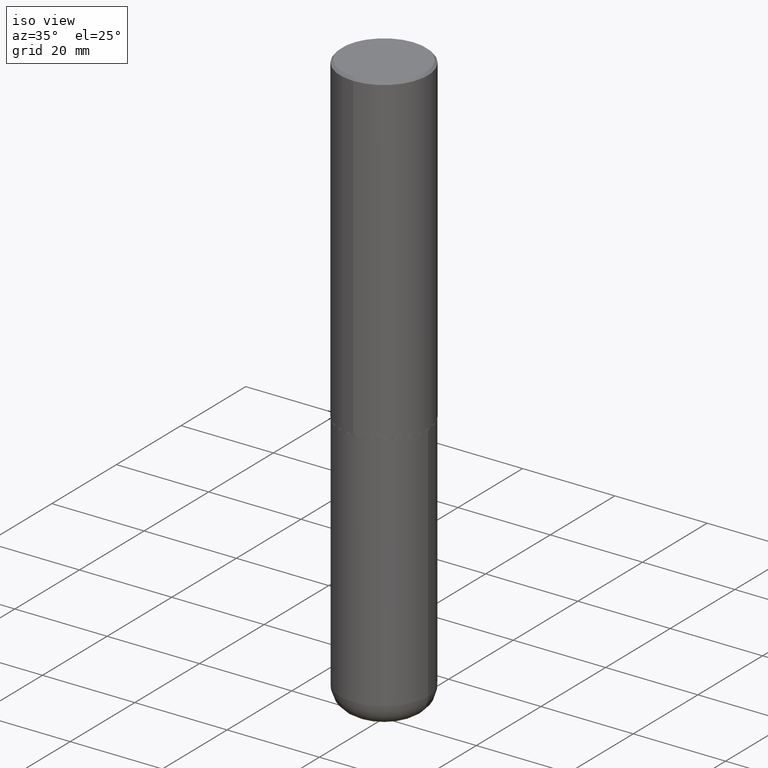
[diagram: clean part render]
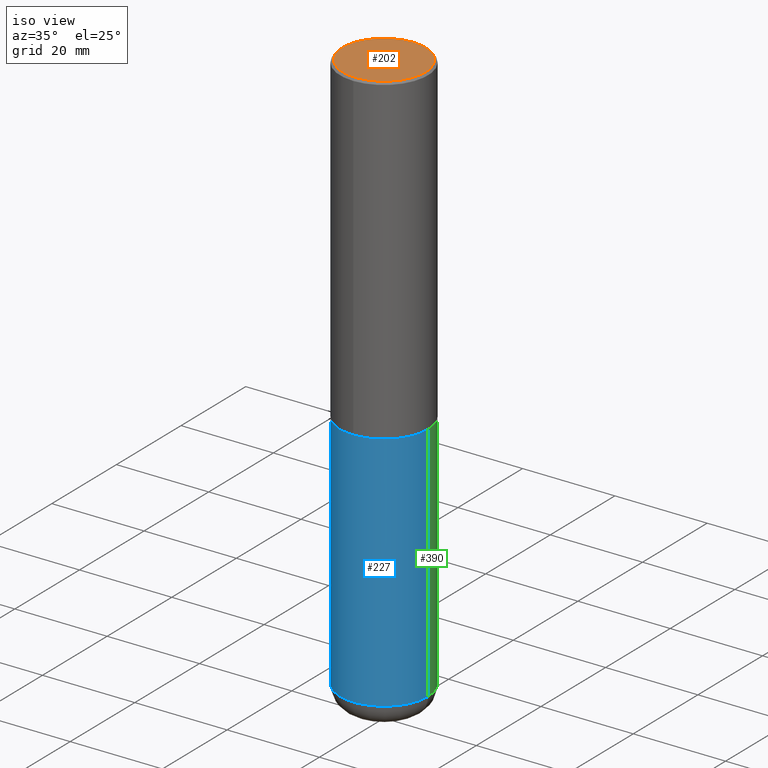
[diagram: same view with three faces highlighted in distinct colors, each labeled with its STEP entity id]
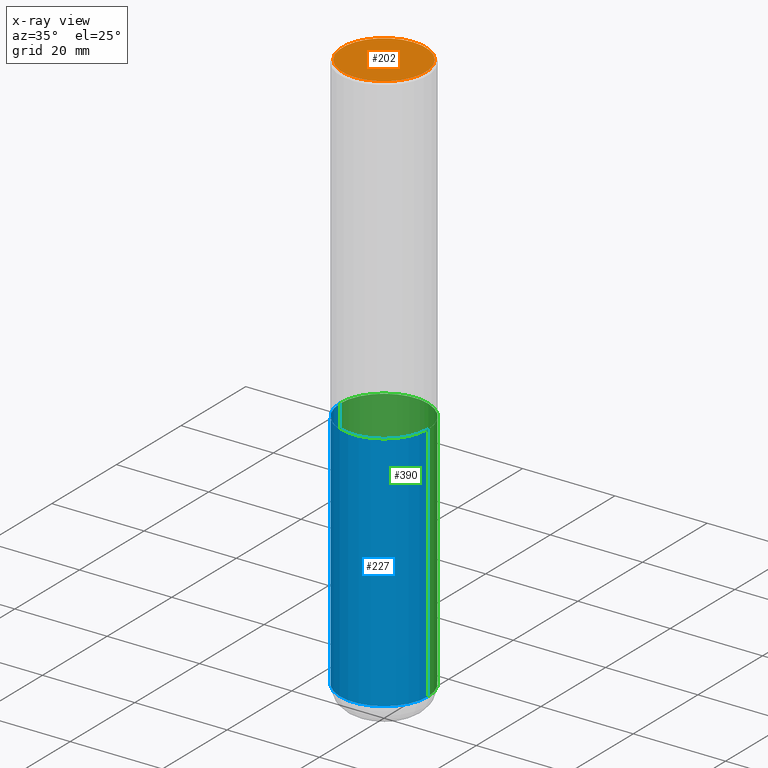
[diagram: x-ray of the same camera — body ghosted, the three highlighted faces saturated]
A machine part, iso view with three faces highlighted in distinct colors.
The next image is the same camera in x-ray (body ghosted, the three faces saturated) — at least one of them is partly hidden behind the body in this view.
Their STEP definitions:

[orange] entity #202 — the highlighted planar face has unit normal (0, -0, -1).
#7 = AXIS2_PLACEMENT_3D ( 'NONE', #410, #127, #166 ) ;
#10 = CARTESIAN_POINT ( 'NONE',  ( -2.504081769186608216E-15, -0.3549999999999999822, 1.285848347115290366E-15 ) ) ;
#50 = DIRECTION ( 'NONE',  ( -6.982962677686265922E-15, -1.000000000000000000, 3.490662795793665557E-15 ) ) ;
#67 = EDGE_CURVE ( 'NONE', #359, #71, #88, .T. ) ;
#71 = VERTEX_POINT ( 'NONE', #90 ) ;
#79 = DIRECTION ( 'NONE',  ( 6.982962677686265922E-15, 1.000000000000000000, -3.490662795793665557E-15 ) ) ;
#88 = CIRCLE ( 'NONE', #7, 0.3549999999999999822 ) ;
#90 = CARTESIAN_POINT ( 'NONE',  ( 2.548781377355487113E-15, 0.3549999999999999822, -1.192522237898212341E-15 ) ) ;
#103 = DIRECTION ( 'NONE',  ( 2.446040391741596045E-29, -3.490662795793665557E-15, -1.000000000000000000 ) ) ;
#127 = DIRECTION ( 'NONE',  ( -2.446040391741596606E-29, 3.490662795793665557E-15, 1.000000000000000000 ) ) ;
#138 = PLANE ( 'NONE',  #221 ) ;
#166 = DIRECTION ( 'NONE',  ( -6.982962677686265922E-15, -1.000000000000000000, 3.490662795793665557E-15 ) ) ;
#202 = ADVANCED_FACE ( 'NONE', ( #355 ), #138, .F. ) ;
#206 = AXIS2_PLACEMENT_3D ( 'NONE', #364, #332, #50 ) ;
#221 = AXIS2_PLACEMENT_3D ( 'NONE', #393, #103, #79 ) ;
#239 = EDGE_CURVE ( 'NONE', #71, #359, #329, .T. ) ;
#305 = EDGE_LOOP ( 'NONE', ( #360, #392 ) ) ;
#329 = CIRCLE ( 'NONE', #206, 0.3549999999999999822 ) ;
#332 = DIRECTION ( 'NONE',  ( -2.446040391741596606E-29, 3.490662795793665557E-15, 1.000000000000000000 ) ) ;
#355 = FACE_OUTER_BOUND ( 'NONE', #305, .T. ) ;
#359 = VERTEX_POINT ( 'NONE', #10 ) ;
#360 = ORIENTED_EDGE ( 'NONE', *, *, #239, .T. ) ;
#364 = CARTESIAN_POINT ( 'NONE',  ( -1.141397163745304909E-45, 1.628849886601155835E-31, 4.666305460853910467E-17 ) ) ;
#392 = ORIENTED_EDGE ( 'NONE', *, *, #67, .T. ) ;
#393 = CARTESIAN_POINT ( 'NONE',  ( 2.478951750578624209E-15, 0.3549999999999999822, -1.215853765202481601E-15 ) ) ;
#410 = CARTESIAN_POINT ( 'NONE',  ( -1.141397163745304909E-45, 1.628849886601155835E-31, 4.666305460853910467E-17 ) ) ;

[blue] entity #227 — the highlighted cylindrical surface (partial cylindrical patch) has radius 9.525 mm, axis along (-0, 0, 1).
#4 = DIRECTION ( 'NONE',  ( -2.445468806185136597E-29, 3.491481338843145583E-15, 1.000000000000000000 ) ) ;
#20 = DIRECTION ( 'NONE',  ( 1.000000000000000000, -6.982962677686265922E-15, 0.000000000000000000 ) ) ;
#27 = EDGE_CURVE ( 'NONE', #181, #38, #215, .T. ) ;
#38 = VERTEX_POINT ( 'NONE', #51 ) ;
#44 = CARTESIAN_POINT ( 'NONE',  ( 6.725039217009124520E-29, -9.601573681818649859E-15, -2.750000000000000000 ) ) ;
#51 = CARTESIAN_POINT ( 'NONE',  ( 0.3750000000000000555, -1.222018468595100145E-14, -2.750000000000000000 ) ) ;
#53 = CARTESIAN_POINT ( 'NONE',  ( 0.3750000000000001110, -2.618611004132350411E-15, 1.828566290923476483E-29 ) ) ;
#77 = LINE ( 'NONE', #276, #222 ) ;
#107 = ORIENTED_EDGE ( 'NONE', *, *, #272, .F. ) ;
#110 = ORIENTED_EDGE ( 'NONE', *, *, #146, .T. ) ;
#139 = ORIENTED_EDGE ( 'NONE', *, *, #27, .T. ) ;
#143 = DIRECTION ( 'NONE',  ( 1.000000000000000000, -6.982962677686266711E-15, 0.000000000000000000 ) ) ;
#146 = EDGE_CURVE ( 'NONE', #363, #181, #185, .T. ) ;
#148 = DIRECTION ( 'NONE',  ( -2.445468806185136877E-29, 3.491481338843145188E-15, 1.000000000000000000 ) ) ;
#156 = AXIS2_PLACEMENT_3D ( 'NONE', #297, #4, #209 ) ;
#161 = DIRECTION ( 'NONE',  ( -2.445468806185136877E-29, 3.491481338843145188E-15, 1.000000000000000000 ) ) ;
#174 = CYLINDRICAL_SURFACE ( 'NONE', #156, 0.3750000000000001110 ) ;
#181 = VERTEX_POINT ( 'NONE', #319 ) ;
#185 = CIRCLE ( 'NONE', #322, 0.3750000000000001110 ) ;
#205 = ORIENTED_EDGE ( 'NONE', *, *, #334, .F. ) ;
#209 = DIRECTION ( 'NONE',  ( 1.000000000000000000, -6.982962677686265922E-15, 4.876176775795935793E-29 ) ) ;
#215 = LINE ( 'NONE', #53, #263 ) ;
#222 = VECTOR ( 'NONE', #148, 39.37007874015748143 ) ;
#227 = ADVANCED_FACE ( 'NONE', ( #301 ), #174, .T. ) ;
#263 = VECTOR ( 'NONE', #161, 39.37007874015748143 ) ;
#272 = EDGE_CURVE ( 'NONE', #340, #38, #310, .T. ) ;
#276 = CARTESIAN_POINT ( 'NONE',  ( -0.3750000000000001110, 2.664535259100376486E-15, -1.844600658845590159E-29 ) ) ;
#297 = CARTESIAN_POINT ( 'NONE',  ( 0.000000000000000000, 0.000000000000000000, 0.000000000000000000 ) ) ;
#301 = FACE_OUTER_BOUND ( 'NONE', #327, .T. ) ;
#304 = CARTESIAN_POINT ( 'NONE',  ( -0.3750000000000000555, -1.053326420172671351E-14, -2.750000000000000000 ) ) ;
#310 = CIRCLE ( 'NONE', #414, 0.3750000000000000555 ) ;
#319 = CARTESIAN_POINT ( 'NONE',  ( 0.3750000000000000555, -1.941263624396788015E-14, -4.810000000000000497 ) ) ;
#322 = AXIS2_PLACEMENT_3D ( 'NONE', #353, #416, #20 ) ;
#327 = EDGE_LOOP ( 'NONE', ( #205, #110, #139, #107 ) ) ;
#334 = EDGE_CURVE ( 'NONE', #363, #340, #77, .T. ) ;
#337 = DIRECTION ( 'NONE',  ( -2.445468806185136597E-29, 3.491481338843145583E-15, 1.000000000000000000 ) ) ;
#340 = VERTEX_POINT ( 'NONE', #304 ) ;
#342 = CARTESIAN_POINT ( 'NONE',  ( -0.3750000000000000555, -1.412948998073515443E-14, -4.810000000000000497 ) ) ;
#353 = CARTESIAN_POINT ( 'NONE',  ( 1.176270495775050811E-28, -1.679402523983553013E-14, -4.810000000000000497 ) ) ;
#363 = VERTEX_POINT ( 'NONE', #342 ) ;
#414 = AXIS2_PLACEMENT_3D ( 'NONE', #44, #337, #143 ) ;
#416 = DIRECTION ( 'NONE',  ( -2.445468806185136597E-29, 3.491481338843145583E-15, 1.000000000000000000 ) ) ;

[green] entity #390 — the highlighted cylindrical surface (partial cylindrical patch) has radius 9.525 mm, axis along (-0, 0, 1).
#27 = EDGE_CURVE ( 'NONE', #181, #38, #215, .T. ) ;
#30 = CARTESIAN_POINT ( 'NONE',  ( 1.176270495775050811E-28, -1.679402523983553013E-14, -4.810000000000000497 ) ) ;
#38 = VERTEX_POINT ( 'NONE', #51 ) ;
#51 = CARTESIAN_POINT ( 'NONE',  ( 0.3750000000000000555, -1.222018468595100145E-14, -2.750000000000000000 ) ) ;
#53 = CARTESIAN_POINT ( 'NONE',  ( 0.3750000000000001110, -2.618611004132350411E-15, 1.828566290923476483E-29 ) ) ;
#62 = AXIS2_PLACEMENT_3D ( 'NONE', #198, #190, #232 ) ;
#77 = LINE ( 'NONE', #276, #222 ) ;
#89 = DIRECTION ( 'NONE',  ( 1.000000000000000000, -6.982962677686265922E-15, 4.876176775795935793E-29 ) ) ;
#96 = DIRECTION ( 'NONE',  ( -2.445468806185136597E-29, 3.491481338843145583E-15, 1.000000000000000000 ) ) ;
#100 = CIRCLE ( 'NONE', #348, 0.3750000000000001110 ) ;
#112 = ORIENTED_EDGE ( 'NONE', *, *, #27, .F. ) ;
#137 = ORIENTED_EDGE ( 'NONE', *, *, #334, .T. ) ;
#142 = EDGE_LOOP ( 'NONE', ( #391, #137, #240, #112 ) ) ;
#148 = DIRECTION ( 'NONE',  ( -2.445468806185136877E-29, 3.491481338843145188E-15, 1.000000000000000000 ) ) ;
#154 = EDGE_CURVE ( 'NONE', #181, #363, #100, .T. ) ;
#161 = DIRECTION ( 'NONE',  ( -2.445468806185136877E-29, 3.491481338843145188E-15, 1.000000000000000000 ) ) ;
#164 = FACE_OUTER_BOUND ( 'NONE', #142, .T. ) ;
#165 = EDGE_CURVE ( 'NONE', #38, #340, #396, .T. ) ;
#181 = VERTEX_POINT ( 'NONE', #319 ) ;
#189 = DIRECTION ( 'NONE',  ( -2.445468806185136597E-29, 3.491481338843145583E-15, 1.000000000000000000 ) ) ;
#190 = DIRECTION ( 'NONE',  ( -2.445468806185136597E-29, 3.491481338843145583E-15, 1.000000000000000000 ) ) ;
#198 = CARTESIAN_POINT ( 'NONE',  ( 6.725039217009124520E-29, -9.601573681818649859E-15, -2.750000000000000000 ) ) ;
#215 = LINE ( 'NONE', #53, #263 ) ;
#222 = VECTOR ( 'NONE', #148, 39.37007874015748143 ) ;
#225 = DIRECTION ( 'NONE',  ( 1.000000000000000000, -6.982962677686265922E-15, 0.000000000000000000 ) ) ;
#232 = DIRECTION ( 'NONE',  ( 1.000000000000000000, -6.982962677686266711E-15, 0.000000000000000000 ) ) ;
#240 = ORIENTED_EDGE ( 'NONE', *, *, #165, .F. ) ;
#251 = CYLINDRICAL_SURFACE ( 'NONE', #357, 0.3750000000000001110 ) ;
#263 = VECTOR ( 'NONE', #161, 39.37007874015748143 ) ;
#276 = CARTESIAN_POINT ( 'NONE',  ( -0.3750000000000001110, 2.664535259100376486E-15, -1.844600658845590159E-29 ) ) ;
#287 = CARTESIAN_POINT ( 'NONE',  ( 0.000000000000000000, 0.000000000000000000, 0.000000000000000000 ) ) ;
#304 = CARTESIAN_POINT ( 'NONE',  ( -0.3750000000000000555, -1.053326420172671351E-14, -2.750000000000000000 ) ) ;
#319 = CARTESIAN_POINT ( 'NONE',  ( 0.3750000000000000555, -1.941263624396788015E-14, -4.810000000000000497 ) ) ;
#334 = EDGE_CURVE ( 'NONE', #363, #340, #77, .T. ) ;
#340 = VERTEX_POINT ( 'NONE', #304 ) ;
#342 = CARTESIAN_POINT ( 'NONE',  ( -0.3750000000000000555, -1.412948998073515443E-14, -4.810000000000000497 ) ) ;
#348 = AXIS2_PLACEMENT_3D ( 'NONE', #30, #96, #225 ) ;
#357 = AXIS2_PLACEMENT_3D ( 'NONE', #287, #189, #89 ) ;
#363 = VERTEX_POINT ( 'NONE', #342 ) ;
#390 = ADVANCED_FACE ( 'NONE', ( #164 ), #251, .T. ) ;
#391 = ORIENTED_EDGE ( 'NONE', *, *, #154, .T. ) ;
#396 = CIRCLE ( 'NONE', #62, 0.3750000000000000555 ) ;